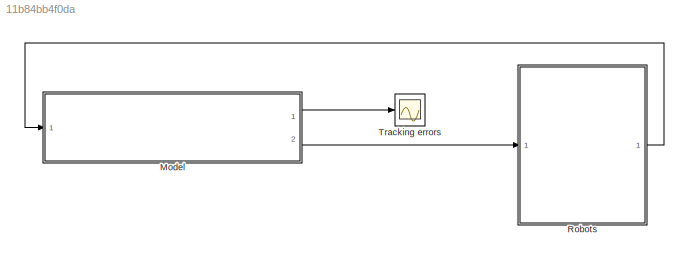
MODEL slx_11b84bb4f0da
KIND model
CONFIG AbsTol = auto
CONFIG EnableMultiTasking = off
CONFIG FixedStep = 0.001
CONFIG MaxStep = auto
CONFIG MinStep = auto
CONFIG RelTol = 1e-3
CONFIG SampleTimeConstraint = Unconstrained
CONFIG SolverName = ode1be
CONFIG StartTime = 0.0
CONFIG StopTime = 20
BLOCK [ModelReference] Model
  CopyOfModelProtected = on
  ModelNameDialog = exoSysAndController.slxp
  ModelReferenceVersion = 1.423
  Ports = [1, 2]
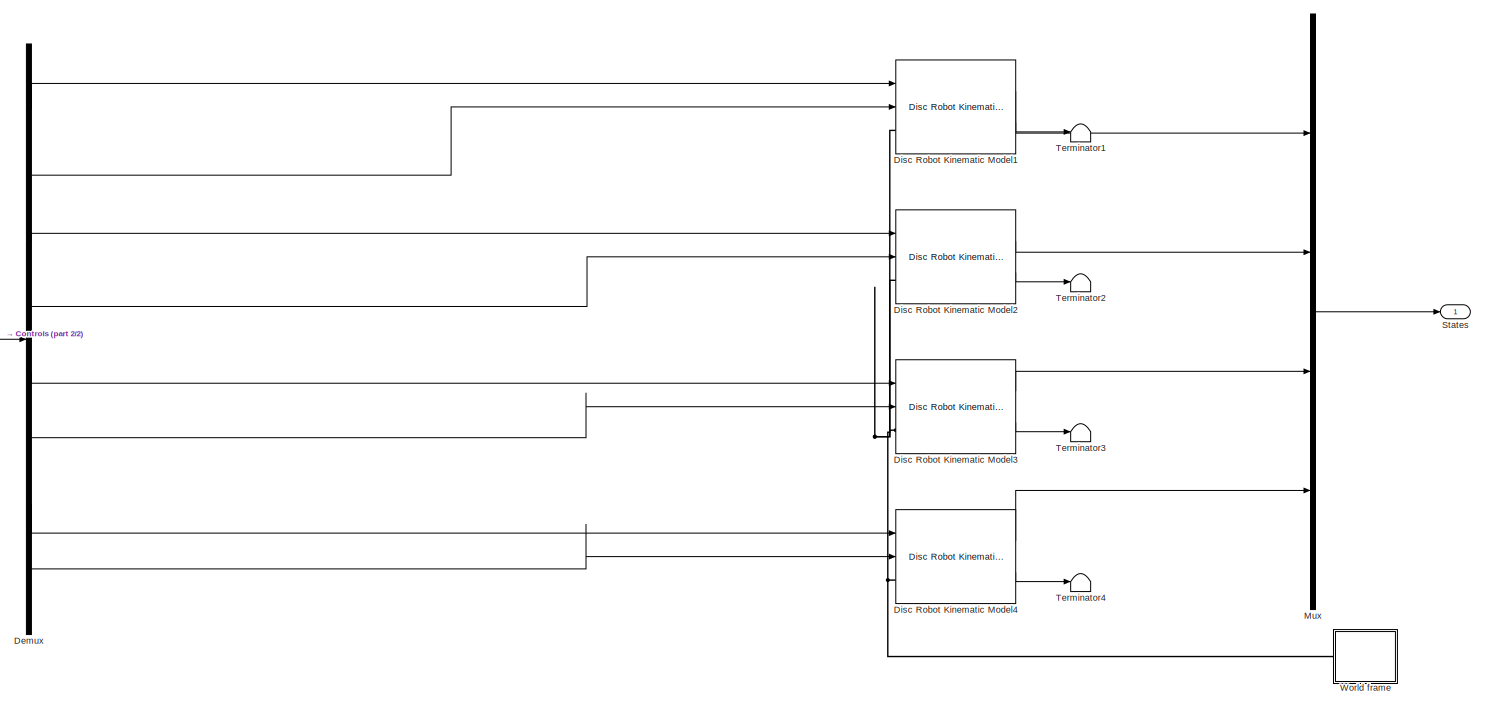
[diagram: Robots - part 1/2, most of the canvas]
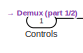
[diagram: Robots - part 2/2, middle left region]
BLOCK [SubSystem] Robots
  Ports = [1, 1]
  RequestExecContextInheritance = off
BLOCK [Inport] Robots/Controls
BLOCK [Demux] Robots/Demux
  Outputs = 8
  Ports = [1, 8]
BLOCK [Reference] Robots/Disc Robot Kinematic Model1  REF=robotics_pg_exp_pack/Robot Models/MATLAB Disc Robot/Disc Robot Kinematic Model
  Ports = [2, 2, 0, 0, 0, 1]
  SourceBlock = robotics_pg_exp_pack/Robot Models/MATLAB Disc Robot/Disc Robot Kinematic Model
  SourceProductName = Robotics Playground Expansion Pack
  SourceType = Disc Robot FK
BLOCK [Reference] Robots/Disc Robot Kinematic Model2  REF=robotics_pg_exp_pack/Robot Models/MATLAB Disc Robot/Disc Robot Kinematic Model
  Ports = [2, 2, 0, 0, 0, 1]
  SourceBlock = robotics_pg_exp_pack/Robot Models/MATLAB Disc Robot/Disc Robot Kinematic Model
  SourceProductName = Robotics Playground Expansion Pack
  SourceType = Disc Robot FK
BLOCK [Reference] Robots/Disc Robot Kinematic Model3  REF=robotics_pg_exp_pack/Robot Models/MATLAB Disc Robot/Disc Robot Kinematic Model
  Ports = [2, 2, 0, 0, 0, 1]
  SourceBlock = robotics_pg_exp_pack/Robot Models/MATLAB Disc Robot/Disc Robot Kinematic Model
  SourceProductName = Robotics Playground Expansion Pack
  SourceType = Disc Robot FK
BLOCK [Reference] Robots/Disc Robot Kinematic Model4  REF=robotics_pg_exp_pack/Robot Models/MATLAB Disc Robot/Disc Robot Kinematic Model
  Ports = [2, 2, 0, 0, 0, 1]
  SourceBlock = robotics_pg_exp_pack/Robot Models/MATLAB Disc Robot/Disc Robot Kinematic Model
  SourceProductName = Robotics Playground Expansion Pack
  SourceType = Disc Robot FK
BLOCK [Mux] Robots/Mux
  DisplayOption = bar
  Ports = [4, 1]
BLOCK [Outport] Robots/States
BLOCK [Terminator] Robots/Terminator1
BLOCK [Terminator] Robots/Terminator2
BLOCK [Terminator] Robots/Terminator3
BLOCK [Terminator] Robots/Terminator4
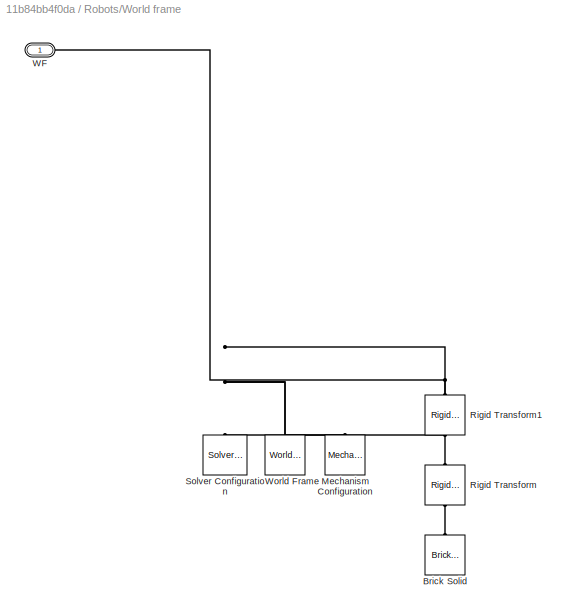
BLOCK [SubSystem] Robots/World frame
  Ports = [0, 0, 0, 0, 0, 1]
  RequestExecContextInheritance = off
BLOCK [Reference] Robots/World frame/Brick Solid  REF=sm_lib/Body Elements/Brick Solid
  NameLocation = right
  Ports = [0, 0, 0, 0, 0, 0, 1]
  SourceBlock = sm_lib/Body Elements/Brick Solid
  SourceProductBaseCode = MS
  SourceType = Brick Solid
BLOCK [Reference] Robots/World frame/Mechanism Configuration  REF=sm_lib/Utilities/Mechanism
Configuration
  NameLocation = right
  Ports = [0, 0, 0, 0, 0, 0, 1]
  SourceBlock = sm_lib/Utilities/Mechanism\nConfiguration
  SourceProductBaseCode = MS
  SourceType = Mechanism\nConfiguration
BLOCK [Reference] Robots/World frame/Rigid Transform  REF=sm_lib/Frames and
Transforms/Rigid
Transform
  NameLocation = right
  Ports = [0, 0, 0, 0, 0, 1, 1]
  SourceBlock = sm_lib/Frames and\nTransforms/Rigid\nTransform
  SourceProductBaseCode = MS
  SourceType = Rigid\nTransform
BLOCK [Reference] Robots/World frame/Rigid Transform1  REF=sm_lib/Frames and
Transforms/Rigid
Transform
  NameLocation = right
  Ports = [0, 0, 0, 0, 0, 1, 1]
  SourceBlock = sm_lib/Frames and\nTransforms/Rigid\nTransform
  SourceProductBaseCode = MS
  SourceType = Rigid\nTransform
BLOCK [Reference] Robots/World frame/Solver Configuration  REF=nesl_utility/Solver
Configuration
  NameLocation = right
  Ports = [0, 0, 0, 0, 0, 0, 1]
  SourceBlock = nesl_utility/Solver\nConfiguration
  SourceProductBaseCode = PW,SS
  SourceType = Solver\nConfiguration
BLOCK [PMIOPort] Robots/World frame/WF
  Side = Left
BLOCK [Reference] Robots/World frame/World Frame  REF=sm_lib/Frames and
Transforms/World Frame
  NameLocation = right
  Ports = [0, 0, 0, 0, 0, 0, 1]
  SourceBlock = sm_lib/Frames and\nTransforms/World Frame
  SourceProductBaseCode = MS
  SourceType = World Frame
BLOCK [Scope] Tracking errors
  Floating = off
  NumInputPorts = 1
  Ports = [1]
  ScopeSpecificationString = Simulink.scopes.TimeScopeBlockCfg('CurrentConfiguration', extmgr.ConfigurationSet(extmgr.Configuration('Core','General UI',true),extmgr.Configuration('Core','Source UI',true),extmgr.Configuration('Sources','WiredSimulink',true),extmgr.Configuration('Visuals','Time Domain',true,'SerializedDisplays',{struct('MinYLimReal','-1.25274','MaxYLimReal','1.27469','YLabelReal','','MinYLimMag','0.00000','MaxY...<+1490ch>
LINE Model:1 -> Tracking errors:1
LINE Model:2 -> Robots:1
LINE Robots/Controls:1 -> Robots/Demux:1
LINE Robots/Demux:1 -> Robots/Disc Robot Kinematic Model1:1
LINE Robots/Demux:2 -> Robots/Disc Robot Kinematic Model1:2
LINE Robots/Demux:3 -> Robots/Disc Robot Kinematic Model2:1
LINE Robots/Demux:4 -> Robots/Disc Robot Kinematic Model2:2
LINE Robots/Demux:5 -> Robots/Disc Robot Kinematic Model3:1
LINE Robots/Demux:6 -> Robots/Disc Robot Kinematic Model3:2
LINE Robots/Demux:7 -> Robots/Disc Robot Kinematic Model4:1
LINE Robots/Demux:8 -> Robots/Disc Robot Kinematic Model4:2
LINE Robots/Disc Robot Kinematic Model1:1 -> Robots/Mux:1
LINE Robots/Disc Robot Kinematic Model1:2 -> Robots/Terminator1:1
LINE Robots/Disc Robot Kinematic Model2:1 -> Robots/Mux:2
LINE Robots/Disc Robot Kinematic Model2:2 -> Robots/Terminator2:1
LINE Robots/Disc Robot Kinematic Model3:1 -> Robots/Mux:3
LINE Robots/Disc Robot Kinematic Model3:2 -> Robots/Terminator3:1
LINE Robots/Disc Robot Kinematic Model4:1 -> Robots/Mux:4
LINE Robots/Disc Robot Kinematic Model4:2 -> Robots/Terminator4:1
LINE Robots/Mux:1 -> Robots/States:1
LINE Robots:1 -> Model:1
PNET net1: Robots/Disc Robot Kinematic Model1:LConn1 -- Robots/Disc Robot Kinematic Model2:LConn1 -- Robots/Disc Robot Kinematic Model3:LConn1 -- Robots/Disc Robot Kinematic Model4:LConn1 -- Robots/World frame:LConn1
PLINE Robots/World frame/Brick Solid:RConn1 -- Robots/World frame/Rigid Transform:LConn1
PNET net2: Robots/World frame/Mechanism Configuration:RConn1 -- Robots/World frame/Rigid Transform1:RConn1 -- Robots/World frame/Solver Configuration:RConn1 -- Robots/World frame/WF:RConn1 -- Robots/World frame/World Frame:RConn1
PLINE Robots/World frame/Rigid Transform1:LConn1 -- Robots/World frame/Rigid Transform:RConn1
note: PNET lines group multi-terminal physical nets as a canonical sorted terminal list (undirected conserving connections); 2-terminal nets keep the pairwise PLINE form
